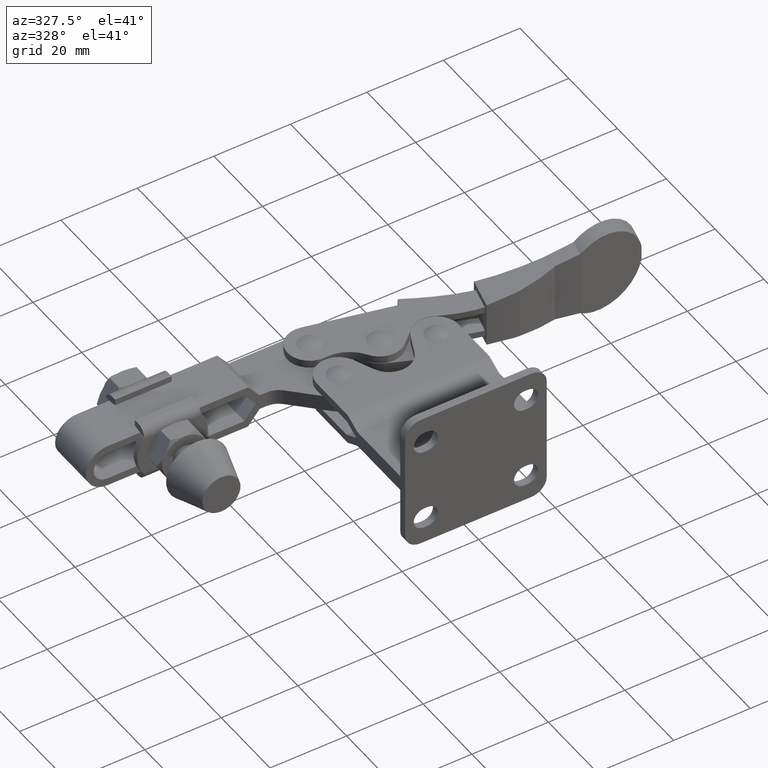
[diagram: clean part render]
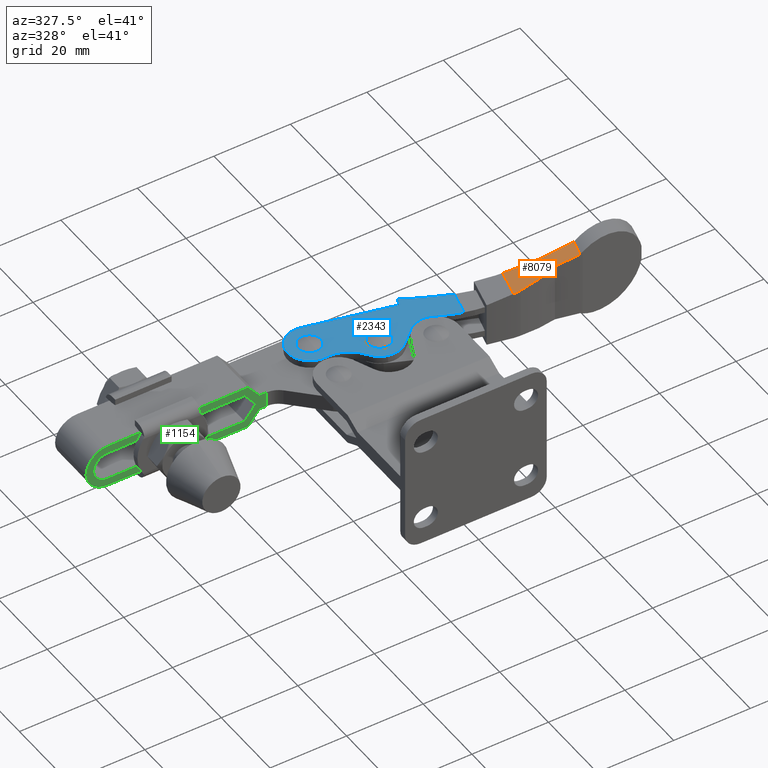
[diagram: same view with three faces highlighted in distinct colors, each labeled with its STEP entity id]
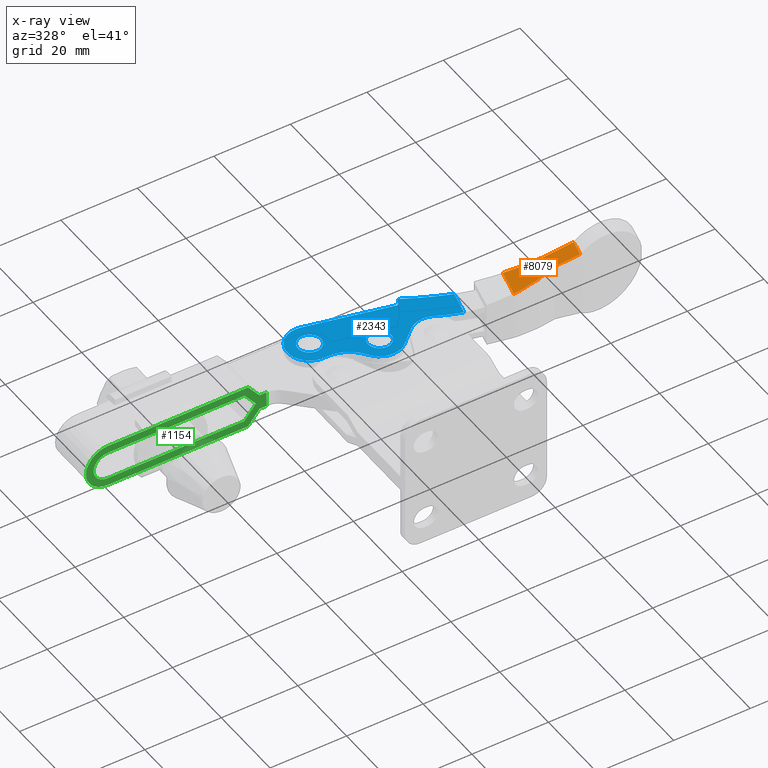
[diagram: x-ray of the same camera — body ghosted, the three highlighted faces saturated]
A machine part, auxiliary view with three faces highlighted in distinct colors.
The next image is the same camera in x-ray (body ghosted, the three faces saturated) — at least one of them is partly hidden behind the body in this view.
Their STEP definitions:

[orange] entity #8079 — the highlighted cylindrical surface (partial cylindrical patch) has radius 350 mm, axis along (0.2273, 0.9738, -0).
#182 = CARTESIAN_POINT ( 'NONE',  ( 29.71553373637161900, 9.047275869916001400, 6.605724985041725900 ) ) ;
#277 = CARTESIAN_POINT ( 'NONE',  ( 16.14530725229687400, 19.43555505541699800, 4.631027056434120900 ) ) ;
#385 = B_SPLINE_CURVE_WITH_KNOTS ( 'NONE', 3,
 ( #2225, #5186, #2043, #1844, #2708, #5007 ),
 .UNSPECIFIED., .F., .F.,
 ( 4, 2, 4 ),
 ( 3.576224061345498000E-018, 0.005052614420662414200, 0.01010522884132482500 ),
 .UNSPECIFIED. ) ;
#443 = CARTESIAN_POINT ( 'NONE',  ( 15.97146556828753300, 26.63097232074376200, 4.447964301841707000 ) ) ;
#506 = CARTESIAN_POINT ( 'NONE',  ( 18.80223342967128600, 26.02984194345509300, 4.733842546678547900 ) ) ;
#581 = CARTESIAN_POINT ( 'NONE',  ( 14.90673156297312800, 19.40787931447619400, 4.507748144591915600 ) ) ;
#837 = FACE_OUTER_BOUND ( 'NONE', #3276, .T. ) ;
#964 = EDGE_CURVE ( 'NONE', #9437, #5190, #4555, .T. ) ;
#971 = CARTESIAN_POINT ( 'NONE',  ( 15.52615591210867900, 19.41479442238132300, 4.568785837510017000 ) ) ;
#1143 = EDGE_CURVE ( 'NONE', #1661, #2745, #3357, .T. ) ;
#1182 = CARTESIAN_POINT ( 'NONE',  ( 14.28702906679042100, 19.41482591856081500, 4.447964301841707000 ) ) ;
#1265 = CARTESIAN_POINT ( 'NONE',  ( 33.09676607689792100, 24.91577958649055400, 6.558819776154054500 ) ) ;
#1320 = ORIENTED_EDGE ( 'NONE', *, *, #9620, .T. ) ;
#1661 = VERTEX_POINT ( 'NONE', #2335 ) ;
#1747 = CARTESIAN_POINT ( 'NONE',  ( 32.43116450689047500, 20.68107102747750000, 6.605724985041725900 ) ) ;
#1844 = CARTESIAN_POINT ( 'NONE',  ( 22.80861727215235700, 20.20002766094386000, 5.342591748807359800 ) ) ;
#2043 = CARTESIAN_POINT ( 'NONE',  ( 19.50425984917126600, 19.65757824698035300, 4.977687391297224400 ) ) ;
#2149 = CARTESIAN_POINT ( 'NONE',  ( 21.64483792207226300, 25.58866070633467200, 5.053658567342627500 ) ) ;
#2183 = B_SPLINE_CURVE_WITH_KNOTS ( 'NONE', 3,
 ( #1182, #581, #971, #277 ),
 .UNSPECIFIED., .F., .F.,
 ( 4, 4 ),
 ( 1.097820954441604300E-016, 0.001867388412720647800 ),
 .UNSPECIFIED. ) ;
#2225 = CARTESIAN_POINT ( 'NONE',  ( 16.14530725229687400, 19.43555505541699800, 4.631027056434120900 ) ) ;
#2309 = VECTOR ( 'NONE', #9133, 1000.000000000000000 ) ;
#2335 = CARTESIAN_POINT ( 'NONE',  ( 14.28702906679042100, 19.41482591856081500, 4.447964301841707000 ) ) ;
#2461 = VECTOR ( 'NONE', #7584, 1000.000000000000000 ) ;
#2509 = DIRECTION ( 'NONE',  ( 0.2273152359232463700, 0.9738212276989852700, -5.621189200537000000E-022 ) ) ;
#2661 = ORIENTED_EDGE ( 'NONE', *, *, #964, .T. ) ;
#2708 = CARTESIAN_POINT ( 'NONE',  ( 24.44281453312565200, 20.57708218126365600, 5.530614048624150000 ) ) ;
#2745 = VERTEX_POINT ( 'NONE', #4115 ) ;
#3190 = VERTEX_POINT ( 'NONE', #8063 ) ;
#3276 = EDGE_LOOP ( 'NONE', ( #2661, #7946, #1320, #8338, #4488, #7329, #8896 ) ) ;
#3357 = LINE ( 'NONE', #6488, #2309 ) ;
#3686 = VERTEX_POINT ( 'NONE', #1265 ) ;
#3923 = CARTESIAN_POINT ( 'NONE',  ( -20.72458187316135200, 20.82131247298844900, 352.7518889091366000 ) ) ;
#4018 = VERTEX_POINT ( 'NONE', #5158 ) ;
#4115 = CARTESIAN_POINT ( 'NONE',  ( 15.97146556828753300, 26.63097232074376200, 4.447964301841707000 ) ) ;
#4142 = CARTESIAN_POINT ( 'NONE',  ( 32.43116450689047500, 20.68107102747750000, 6.605724985041725900 ) ) ;
#4278 = DIRECTION ( 'NONE',  ( -0.9738212276989852700, 0.2273152359232464300, 0.0000000000000000000 ) ) ;
#4488 = ORIENTED_EDGE ( 'NONE', *, *, #7519, .T. ) ;
#4555 = LINE ( 'NONE', #182, #2461 ) ;
#4837 = CARTESIAN_POINT ( 'NONE',  ( 27.35324036018420900, 25.01780731453373000, 5.758242121814880000 ) ) ;
#5007 = CARTESIAN_POINT ( 'NONE',  ( 26.05880298282687600, 21.06250147665629800, 5.722492895900964000 ) ) ;
#5091 = B_SPLINE_CURVE_WITH_KNOTS ( 'NONE', 3,
 ( #8169, #6810, #4837, #2149, #506, #443 ),
 .UNSPECIFIED., .F., .F.,
 ( 4, 2, 4 ),
 ( 0.0000000000000000000, 0.008669969931598386600, 0.01733993986319677300 ),
 .UNSPECIFIED. ) ;
#5158 = CARTESIAN_POINT ( 'NONE',  ( 26.05880298282687600, 21.06250147665629800, 5.722492895900964000 ) ) ;
#5186 = CARTESIAN_POINT ( 'NONE',  ( 17.83410101094937500, 19.49218164284500100, 4.800795859677078800 ) ) ;
#5190 = VERTEX_POINT ( 'NONE', #5215 ) ;
#5215 = CARTESIAN_POINT ( 'NONE',  ( 33.42759395600311500, 24.94978687271866800, 6.605724985041725900 ) ) ;
#5733 = CYLINDRICAL_SURFACE ( 'NONE', #9804, 349.9999999999998300 ) ;
#6030 = CARTESIAN_POINT ( 'NONE',  ( 33.20704950388130100, 24.92711611616207900, 6.574407243089404500 ) ) ;
#6075 = EDGE_CURVE ( 'NONE', #5190, #3686, #6669, .T. ) ;
#6182 = B_SPLINE_CURVE_WITH_KNOTS ( 'NONE', 3,
 ( #7735, #7047, #8552, #1747 ),
 .UNSPECIFIED., .F., .F.,
 ( 4, 4 ),
 ( 0.0000000000000000000, 0.006444577527209586700 ),
 .UNSPECIFIED. ) ;
#6488 = CARTESIAN_POINT ( 'NONE',  ( 12.78924758210094100, 12.99831187223626800, 4.447964301841707000 ) ) ;
#6578 = EDGE_CURVE ( 'NONE', #4018, #9437, #6182, .T. ) ;
#6669 =( BOUNDED_CURVE ( )  B_SPLINE_CURVE ( 3, ( #8007, #8122, #6030, #8852 ),
 .UNSPECIFIED., .F., .F. ) 
 B_SPLINE_CURVE_WITH_KNOTS ( ( 4, 4 ),
 ( 1.422261976327436700, 1.423170307967368100 ),
 .UNSPECIFIED. ) 
 CURVE ( )  GEOMETRIC_REPRESENTATION_ITEM ( )  RATIONAL_B_SPLINE_CURVE ( ( 1.000000000000000000, 0.9999999312444704000, 0.9999999312444704000, 1.000000000000000000 ) ) 
 REPRESENTATION_ITEM ( '' )  );
#6810 = CARTESIAN_POINT ( 'NONE',  ( 30.21903856903797300, 24.88814573504698300, 6.143016113714499400 ) ) ;
#7047 = CARTESIAN_POINT ( 'NONE',  ( 28.17730242176467900, 20.80395871625338700, 6.000712829735866700 ) ) ;
#7329 = ORIENTED_EDGE ( 'NONE', *, *, #9496, .T. ) ;
#7519 = EDGE_CURVE ( 'NONE', #1661, #3190, #2183, .T. ) ;
#7584 = DIRECTION ( 'NONE',  ( 0.2273152359232463700, 0.9738212276989852700, -5.621189200537000000E-022 ) ) ;
#7735 = CARTESIAN_POINT ( 'NONE',  ( 26.05880298282687600, 21.06250147665629800, 5.722492895900964000 ) ) ;
#7946 = ORIENTED_EDGE ( 'NONE', *, *, #6075, .T. ) ;
#8007 = CARTESIAN_POINT ( 'NONE',  ( 33.42759395600311500, 24.94978687271866800, 6.605724985041725900 ) ) ;
#8063 = CARTESIAN_POINT ( 'NONE',  ( 16.14530725229687400, 19.43555505541699800, 4.631027056434120900 ) ) ;
#8079 = ADVANCED_FACE ( 'NONE', ( #837 ), #5733, .F. ) ;
#8122 = CARTESIAN_POINT ( 'NONE',  ( 33.31732547116505600, 24.93845187901751400, 6.590042313793631500 ) ) ;
#8169 = CARTESIAN_POINT ( 'NONE',  ( 33.09676607689792100, 24.91577958649055400, 6.558819776154054500 ) ) ;
#8338 = ORIENTED_EDGE ( 'NONE', *, *, #1143, .F. ) ;
#8552 = CARTESIAN_POINT ( 'NONE',  ( 30.30138576244248200, 20.67709121147731500, 6.295510865156307600 ) ) ;
#8852 = CARTESIAN_POINT ( 'NONE',  ( 33.09676607689792100, 24.91577958649055400, 6.558819776154054500 ) ) ;
#8896 = ORIENTED_EDGE ( 'NONE', *, *, #6578, .T. ) ;
#9133 = DIRECTION ( 'NONE',  ( 0.2273152359232463700, 0.9738212276989852700, -5.621189200537000000E-022 ) ) ;
#9437 = VERTEX_POINT ( 'NONE', #4142 ) ;
#9496 = EDGE_CURVE ( 'NONE', #3190, #4018, #385, .T. ) ;
#9620 = EDGE_CURVE ( 'NONE', #3686, #2745, #5091, .T. ) ;
#9804 = AXIS2_PLACEMENT_3D ( 'NONE', #3923, #2509, #4278 ) ;

[blue] entity #2343 — the highlighted planar face has unit normal (-0, 0, 1).
#180 = AXIS2_PLACEMENT_3D ( 'NONE', #3273, #6023, #6068 ) ;
#250 = ORIENTED_EDGE ( 'NONE', *, *, #9663, .T. ) ;
#321 = LINE ( 'NONE', #8306, #969 ) ;
#386 = VERTEX_POINT ( 'NONE', #6873 ) ;
#405 = CARTESIAN_POINT ( 'NONE',  ( 3.148089688104482900, 22.31686431136514800, 2.099999999999925000 ) ) ;
#488 = DIRECTION ( 'NONE',  ( -4.082110364348194400E-017, 9.529285930860709400E-018, 1.000000000000000000 ) ) ;
#624 = VERTEX_POINT ( 'NONE', #1834 ) ;
#851 = CIRCLE ( 'NONE', #5247, 79.99999999999998600 ) ;
#900 = DIRECTION ( 'NONE',  ( -4.084482097190259600E-017, 9.426162583637845600E-018, 1.000000000000000000 ) ) ;
#937 = VECTOR ( 'NONE', #2559, 999.9999999999998900 ) ;
#951 = CIRCLE ( 'NONE', #6824, 40.35285523613284700 ) ;
#969 = VECTOR ( 'NONE', #4271, 1000.000000000000000 ) ;
#1085 = CARTESIAN_POINT ( 'NONE',  ( 4.629808909308162700, 28.66456742610471800, 2.099999999999925000 ) ) ;
#1186 = CIRCLE ( 'NONE', #9735, 2.993325909419145800 ) ;
#1211 = CARTESIAN_POINT ( 'NONE',  ( -9.362409637480292100, 24.19322708995131400, 2.099999999999924100 ) ) ;
#1223 = LINE ( 'NONE', #1211, #1707 ) ;
#1390 = VERTEX_POINT ( 'NONE', #8978 ) ;
#1425 = EDGE_LOOP ( 'NONE', ( #9921, #3914 ) ) ;
#1428 = EDGE_CURVE ( 'NONE', #5477, #9100, #3983, .T. ) ;
#1510 = DIRECTION ( 'NONE',  ( -4.082110364348194400E-017, 9.529285930860709400E-018, 1.000000000000000000 ) ) ;
#1545 = DIRECTION ( 'NONE',  ( -4.082110364348194400E-017, 9.529285930860709400E-018, 1.000000000000000000 ) ) ;
#1707 = VECTOR ( 'NONE', #7767, 1000.000000000000000 ) ;
#1717 = VECTOR ( 'NONE', #6755, 1000.000000000000000 ) ;
#1834 = CARTESIAN_POINT ( 'NONE',  ( -9.608763321469787400, 23.97306966154277000, 2.099999999999924100 ) ) ;
#1845 = AXIS2_PLACEMENT_3D ( 'NONE', #3187, #4653, #4477 ) ;
#1914 = CARTESIAN_POINT ( 'NONE',  ( -22.38086238138301800, 21.69770944711292400, 2.099999999999925000 ) ) ;
#2136 = CIRCLE ( 'NONE', #3375, 5.749999999999998200 ) ;
#2276 = EDGE_CURVE ( 'NONE', #3159, #9753, #851, .T. ) ;
#2287 = EDGE_CURVE ( 'NONE', #9753, #3642, #5509, .T. ) ;
#2343 = ADVANCED_FACE ( 'NONE', ( #6138, #8514, #9927 ), #7009, .T. ) ;
#2551 = ORIENTED_EDGE ( 'NONE', *, *, #2287, .T. ) ;
#2559 = DIRECTION ( 'NONE',  ( -0.9738212276989853800, 0.2273152359232462600, -4.191860914567678200E-017 ) ) ;
#2580 = DIRECTION ( 'NONE',  ( -4.082110364348194400E-017, 9.529285930860709400E-018, 1.000000000000000000 ) ) ;
#2630 = AXIS2_PLACEMENT_3D ( 'NONE', #7942, #1545, #9788 ) ;
#2702 = CIRCLE ( 'NONE', #180, 5.749999999999992900 ) ;
#2773 = EDGE_CURVE ( 'NONE', #7210, #9166, #951, .T. ) ;
#3056 = EDGE_CURVE ( 'NONE', #6719, #5916, #4250, .T. ) ;
#3149 = EDGE_LOOP ( 'NONE', ( #5692, #3834, #2551, #6059, #6261, #5001, #5769, #8066, #5660, #6096, #250, #8357 ) ) ;
#3159 = VERTEX_POINT ( 'NONE', #1085 ) ;
#3175 = DIRECTION ( 'NONE',  ( -0.9738212276989850500, 0.2273152359232466800, -7.542275982507853400E-017 ) ) ;
#3187 = CARTESIAN_POINT ( 'NONE',  ( 3.238114469305601400, 10.09338246356555200, 2.099999999999925000 ) ) ;
#3205 = DIRECTION ( 'NONE',  ( -0.9738212276989866000, 0.2273152359232403500, -4.336808689942018400E-017 ) ) ;
#3207 = CARTESIAN_POINT ( 'NONE',  ( -29.94293739344106300, 37.34947205926926700, 2.099999999999921500 ) ) ;
#3273 = CARTESIAN_POINT ( 'NONE',  ( -5.777248084228935100, 19.68564724396002000, 2.099999999999925000 ) ) ;
#3375 = AXIS2_PLACEMENT_3D ( 'NONE', #9668, #7222, #9922 ) ;
#3406 = EDGE_CURVE ( 'NONE', #7687, #1390, #7557, .T. ) ;
#3642 = VERTEX_POINT ( 'NONE', #5271 ) ;
#3834 = ORIENTED_EDGE ( 'NONE', *, *, #2276, .T. ) ;
#3902 = ORIENTED_EDGE ( 'NONE', *, *, #3056, .F. ) ;
#3906 = AXIS2_PLACEMENT_3D ( 'NONE', #9380, #9485, #9469 ) ;
#3914 = ORIENTED_EDGE ( 'NONE', *, *, #3406, .F. ) ;
#3941 = VERTEX_POINT ( 'NONE', #3207 ) ;
#3983 = CIRCLE ( 'NONE', #6811, 5.749999999999998200 ) ;
#4021 = CARTESIAN_POINT ( 'NONE',  ( -17.45843402247838900, 24.66961103556628000, 2.099999999999917900 ) ) ;
#4123 = EDGE_CURVE ( 'NONE', #3642, #3941, #6449, .T. ) ;
#4209 = CIRCLE ( 'NONE', #3906, 8.999999999999930700 ) ;
#4250 = CIRCLE ( 'NONE', #8103, 2.993325909419145800 ) ;
#4271 = DIRECTION ( 'NONE',  ( 0.2273152359232463700, 0.9738212276989852700, -5.621189200537000000E-022 ) ) ;
#4305 = DIRECTION ( 'NONE',  ( 1.000000000000000000, 0.0000000000000000000, 0.0000000000000000000 ) ) ;
#4477 = DIRECTION ( 'NONE',  ( -0.9738212276989852700, 0.2273152359232463700, -4.191860914567677500E-017 ) ) ;
#4653 = DIRECTION ( 'NONE',  ( -4.082110364348193200E-017, 9.529285930860707800E-018, 1.000000000000000000 ) ) ;
#4883 = CARTESIAN_POINT ( 'NONE',  ( -17.45843402247838900, 24.66961103556628000, 2.099999999999917900 ) ) ;
#4982 = EDGE_CURVE ( 'NONE', #5916, #6719, #1186, .T. ) ;
#5001 = ORIENTED_EDGE ( 'NONE', *, *, #7124, .T. ) ;
#5247 = AXIS2_PLACEMENT_3D ( 'NONE', #7367, #5259, #3205 ) ;
#5259 = DIRECTION ( 'NONE',  ( 4.082110364348194400E-017, -9.529285930860709400E-018, -1.000000000000000000 ) ) ;
#5271 = CARTESIAN_POINT ( 'NONE',  ( -7.715475415116430600, 32.16100356026499400, 2.099999999999925000 ) ) ;
#5349 = ORIENTED_EDGE ( 'NONE', *, *, #4982, .F. ) ;
#5392 = CARTESIAN_POINT ( 'NONE',  ( -17.45843402247838900, 21.67628512614712800, 2.099999999999917900 ) ) ;
#5395 = DIRECTION ( 'NONE',  ( -4.082110364348194400E-017, 9.529285930860709400E-018, 1.000000000000000000 ) ) ;
#5477 = VERTEX_POINT ( 'NONE', #9841 ) ;
#5509 = LINE ( 'NONE', #7446, #1717 ) ;
#5660 = ORIENTED_EDGE ( 'NONE', *, *, #1428, .T. ) ;
#5692 = ORIENTED_EDGE ( 'NONE', *, *, #7288, .T. ) ;
#5719 = CARTESIAN_POINT ( 'NONE',  ( -31.24999999999971900, 28.75667409058095100, 2.099999999999923700 ) ) ;
#5769 = ORIENTED_EDGE ( 'NONE', *, *, #6146, .T. ) ;
#5916 = VERTEX_POINT ( 'NONE', #9500 ) ;
#5917 = VERTEX_POINT ( 'NONE', #1914 ) ;
#6009 = EDGE_CURVE ( 'NONE', #5917, #5477, #2136, .T. ) ;
#6023 = DIRECTION ( 'NONE',  ( 4.082110364348194400E-017, -9.529285930860709400E-018, -1.000000000000000000 ) ) ;
#6059 = ORIENTED_EDGE ( 'NONE', *, *, #4123, .T. ) ;
#6068 = DIRECTION ( 'NONE',  ( -0.9738212276989851600, 0.2273152359232464800, -7.542275982507865800E-017 ) ) ;
#6096 = ORIENTED_EDGE ( 'NONE', *, *, #7334, .T. ) ;
#6138 = FACE_BOUND ( 'NONE', #8591, .T. ) ;
#6146 = EDGE_CURVE ( 'NONE', #386, #5917, #4209, .T. ) ;
#6261 = ORIENTED_EDGE ( 'NONE', *, *, #6707, .T. ) ;
#6332 = CARTESIAN_POINT ( 'NONE',  ( -32.55706260655839700, 26.15052794073093200, 2.099999999999925000 ) ) ;
#6449 = LINE ( 'NONE', #8690, #937 ) ;
#6707 = EDGE_CURVE ( 'NONE', #3941, #6708, #9261, .T. ) ;
#6708 = VERTEX_POINT ( 'NONE', #6332 ) ;
#6719 = VERTEX_POINT ( 'NONE', #5719 ) ;
#6755 = DIRECTION ( 'NONE',  ( -0.4566171531680228200, -0.8896632932928785200, -1.016176023088449600E-017 ) ) ;
#6811 = AXIS2_PLACEMENT_3D ( 'NONE', #6847, #6871, #7926 ) ;
#6824 = AXIS2_PLACEMENT_3D ( 'NONE', #6875, #2580, #8087 ) ;
#6847 = CARTESIAN_POINT ( 'NONE',  ( -17.45843402247840000, 24.66961103556629100, 2.099999999999925000 ) ) ;
#6871 = DIRECTION ( 'NONE',  ( -4.082110364348194400E-017, 9.529285930860709400E-018, 1.000000000000000000 ) ) ;
#6873 = CARTESIAN_POINT ( 'NONE',  ( -30.79605518122651700, 26.01794678134372100, 2.099999999999925000 ) ) ;
#6875 = CARTESIAN_POINT ( 'NONE',  ( 14.75278981845948300, 60.96507074572419800, 2.099999999999925000 ) ) ;
#7009 = PLANE ( 'NONE',  #1845 ) ;
#7124 = EDGE_CURVE ( 'NONE', #6708, #386, #8123, .T. ) ;
#7210 = VERTEX_POINT ( 'NONE', #7273 ) ;
#7222 = DIRECTION ( 'NONE',  ( -4.082110364348194400E-017, 9.529285930860709400E-018, 1.000000000000000000 ) ) ;
#7270 = CARTESIAN_POINT ( 'NONE',  ( -13.62691878523754100, 20.38218861798354100, 2.099999999999925000 ) ) ;
#7273 = CARTESIAN_POINT ( 'NONE',  ( -3.216718647693298700, 24.83406340862996900, 2.099999999999925000 ) ) ;
#7288 = EDGE_CURVE ( 'NONE', #9166, #3159, #321, .T. ) ;
#7334 = EDGE_CURVE ( 'NONE', #9100, #624, #1223, .T. ) ;
#7367 = CARTESIAN_POINT ( 'NONE',  ( 32.34011100873916400, 103.7121467178998000, 2.099999999999925000 ) ) ;
#7421 = DIRECTION ( 'NONE',  ( -4.084482097190259600E-017, 9.426162583637845600E-018, 1.000000000000000000 ) ) ;
#7446 = CARTESIAN_POINT ( 'NONE',  ( -14.39631195513749900, 19.14420163570079200, 2.099999999999924100 ) ) ;
#7557 = CIRCLE ( 'NONE', #8708, 2.993325909419154200 ) ;
#7604 = AXIS2_PLACEMENT_3D ( 'NONE', #9068, #5395, #3175 ) ;
#7687 = VERTEX_POINT ( 'NONE', #5392 ) ;
#7767 = DIRECTION ( 'NONE',  ( 0.7456386813187392300, 0.6663504760418886800, 2.408794967433314400E-017 ) ) ;
#7843 = DIRECTION ( 'NONE',  ( 1.000000000000000000, 0.0000000000000000000, 0.0000000000000000000 ) ) ;
#7926 = DIRECTION ( 'NONE',  ( -0.9738212276989852700, 0.2273152359232462900, -7.542275982507859600E-017 ) ) ;
#7942 = CARTESIAN_POINT ( 'NONE',  ( -31.24999999999973000, 31.75000000000009600, 2.099999999999925000 ) ) ;
#8066 = ORIENTED_EDGE ( 'NONE', *, *, #6009, .T. ) ;
#8087 = DIRECTION ( 'NONE',  ( -0.9738212276989851600, 0.2273152359232464300, -4.298886574012480500E-017 ) ) ;
#8103 = AXIS2_PLACEMENT_3D ( 'NONE', #8294, #1510, #9239 ) ;
#8123 = CIRCLE ( 'NONE', #7604, 5.750000000000002700 ) ;
#8148 = EDGE_CURVE ( 'NONE', #1390, #7687, #9904, .T. ) ;
#8294 = CARTESIAN_POINT ( 'NONE',  ( -31.24999999999971900, 31.75000000000009600, 2.099999999999923300 ) ) ;
#8306 = CARTESIAN_POINT ( 'NONE',  ( 0.4468977170068513800, 10.74492514564583900, 2.099999999999925000 ) ) ;
#8357 = ORIENTED_EDGE ( 'NONE', *, *, #2773, .T. ) ;
#8483 = CARTESIAN_POINT ( 'NONE',  ( -6.801583942516571400, 33.94161055582892300, 2.099999999999921500 ) ) ;
#8514 = FACE_BOUND ( 'NONE', #1425, .T. ) ;
#8583 = AXIS2_PLACEMENT_3D ( 'NONE', #4021, #7421, #9781 ) ;
#8591 = EDGE_LOOP ( 'NONE', ( #5349, #3902 ) ) ;
#8690 = CARTESIAN_POINT ( 'NONE',  ( 7.557103951847284200, 28.59598578984627100, 2.099999999999925000 ) ) ;
#8708 = AXIS2_PLACEMENT_3D ( 'NONE', #4883, #900, #4305 ) ;
#8978 = CARTESIAN_POINT ( 'NONE',  ( -17.45843402247838900, 27.66293694498543200, 2.099999999999917900 ) ) ;
#9029 = CARTESIAN_POINT ( 'NONE',  ( -31.24999999999971900, 31.75000000000009600, 2.099999999999923300 ) ) ;
#9068 = CARTESIAN_POINT ( 'NONE',  ( -31.24999999999973000, 31.75000000000009600, 2.099999999999925000 ) ) ;
#9100 = VERTEX_POINT ( 'NONE', #7270 ) ;
#9166 = VERTEX_POINT ( 'NONE', #405 ) ;
#9239 = DIRECTION ( 'NONE',  ( 1.000000000000000000, 0.0000000000000000000, 0.0000000000000000000 ) ) ;
#9261 = CIRCLE ( 'NONE', #2630, 5.750000000000002700 ) ;
#9380 = CARTESIAN_POINT ( 'NONE',  ( -30.08553285619019100, 17.04603739562075400, 2.099999999999925000 ) ) ;
#9469 = DIRECTION ( 'NONE',  ( -0.9738212276989853800, 0.2273152359232463200, -4.818676322157834600E-017 ) ) ;
#9485 = DIRECTION ( 'NONE',  ( 4.082110364348194400E-017, -9.529285930860709400E-018, -1.000000000000000000 ) ) ;
#9500 = CARTESIAN_POINT ( 'NONE',  ( -31.24999999999971900, 34.74332590941924100, 2.099999999999923700 ) ) ;
#9663 = EDGE_CURVE ( 'NONE', #624, #7210, #2702, .T. ) ;
#9668 = CARTESIAN_POINT ( 'NONE',  ( -17.45843402247840000, 24.66961103556629100, 2.099999999999925000 ) ) ;
#9735 = AXIS2_PLACEMENT_3D ( 'NONE', #9029, #488, #7843 ) ;
#9753 = VERTEX_POINT ( 'NONE', #8483 ) ;
#9781 = DIRECTION ( 'NONE',  ( 1.000000000000000000, 0.0000000000000000000, 0.0000000000000000000 ) ) ;
#9788 = DIRECTION ( 'NONE',  ( -0.9738212276989850500, 0.2273152359232466800, -7.542275982507853400E-017 ) ) ;
#9841 = CARTESIAN_POINT ( 'NONE',  ( -18.76549662903706700, 19.07013897629712700, 2.099999999999925000 ) ) ;
#9904 = CIRCLE ( 'NONE', #8583, 2.993325909419154200 ) ;
#9921 = ORIENTED_EDGE ( 'NONE', *, *, #8148, .F. ) ;
#9922 = DIRECTION ( 'NONE',  ( -0.9738212276989852700, 0.2273152359232462900, -7.542275982507859600E-017 ) ) ;
#9927 = FACE_OUTER_BOUND ( 'NONE', #3149, .T. ) ;

[green] entity #1154 — the highlighted planar face has unit normal (0, -1, -0).
#83 = CARTESIAN_POINT ( 'NONE',  ( -51.54999999999969200, 25.08000000000017900, -7.699999999999424600 ) ) ;
#112 = ORIENTED_EDGE ( 'NONE', *, *, #8980, .F. ) ;
#189 = ORIENTED_EDGE ( 'NONE', *, *, #8658, .T. ) ;
#433 = VERTEX_POINT ( 'NONE', #8043 ) ;
#502 = VERTEX_POINT ( 'NONE', #4453 ) ;
#522 = VERTEX_POINT ( 'NONE', #926 ) ;
#588 = AXIS2_PLACEMENT_3D ( 'NONE', #2777, #4873, #4736 ) ;
#591 = DIRECTION ( 'NONE',  ( 1.000000000000000000, 6.224333782242064800E-019, -2.356930568284092300E-017 ) ) ;
#612 = VERTEX_POINT ( 'NONE', #5576 ) ;
#677 = LINE ( 'NONE', #5332, #8184 ) ;
#740 = LINE ( 'NONE', #6703, #3767 ) ;
#771 = ORIENTED_EDGE ( 'NONE', *, *, #1609, .F. ) ;
#794 = CARTESIAN_POINT ( 'NONE',  ( -93.91542650810583800, 25.08000000000017900, -2.000049999999548200 ) ) ;
#926 = CARTESIAN_POINT ( 'NONE',  ( -88.19999999999988900, 25.08000000000017900, -5.699999999999473500 ) ) ;
#1030 = CIRCLE ( 'NONE', #3433, 5.699999999999913100 ) ;
#1068 = VERTEX_POINT ( 'NONE', #2803 ) ;
#1095 = ORIENTED_EDGE ( 'NONE', *, *, #5230, .F. ) ;
#1116 = VERTEX_POINT ( 'NONE', #7543 ) ;
#1140 = CARTESIAN_POINT ( 'NONE',  ( -48.54999999999956400, 25.08000000000017900, 6.453171330633722400E-013 ) ) ;
#1154 = ADVANCED_FACE ( 'NONE', ( #7123 ), #9103, .T. ) ;
#1278 = CARTESIAN_POINT ( 'NONE',  ( -88.19999999999983200, 25.08000000000017900, 1.700000000000458900 ) ) ;
#1323 = CIRCLE ( 'NONE', #2660, 5.699999999999913100 ) ;
#1356 = CARTESIAN_POINT ( 'NONE',  ( -52.50319034893249900, 25.08000000000017900, -5.699999999999502800 ) ) ;
#1421 = ORIENTED_EDGE ( 'NONE', *, *, #8615, .F. ) ;
#1446 = DIRECTION ( 'NONE',  ( -1.000000000000000000, -6.224333782242064800E-019, 1.554344465351351100E-015 ) ) ;
#1466 = LINE ( 'NONE', #1278, #5137 ) ;
#1609 = EDGE_CURVE ( 'NONE', #522, #5232, #3871, .T. ) ;
#1663 = DIRECTION ( 'NONE',  ( -0.6298019584212584100, -9.373560944137072300E-017, 0.7767557487194719500 ) ) ;
#1721 = ORIENTED_EDGE ( 'NONE', *, *, #5834, .F. ) ;
#1756 = CIRCLE ( 'NONE', #2584, 3.699999999999967300 ) ;
#1790 = ORIENTED_EDGE ( 'NONE', *, *, #8430, .F. ) ;
#1886 = DIRECTION ( 'NONE',  ( 1.000000000000000000, 0.0000000000000000000, 0.0000000000000000000 ) ) ;
#2018 = VERTEX_POINT ( 'NONE', #1140 ) ;
#2197 = CARTESIAN_POINT ( 'NONE',  ( -46.71208511739180800, 25.08000000000017900, 6.340414304695229900E-013 ) ) ;
#2477 = CARTESIAN_POINT ( 'NONE',  ( -46.71208511739180800, 25.08000000000025400, -2.000049999999549100 ) ) ;
#2546 = EDGE_CURVE ( 'NONE', #4896, #612, #7442, .T. ) ;
#2584 = AXIS2_PLACEMENT_3D ( 'NONE', #9204, #9238, #6462 ) ;
#2660 = AXIS2_PLACEMENT_3D ( 'NONE', #8635, #9665, #8235 ) ;
#2777 = CARTESIAN_POINT ( 'NONE',  ( -88.19999999999988900, 25.08000000000017900, -1.999999999999506800 ) ) ;
#2803 = CARTESIAN_POINT ( 'NONE',  ( -88.19999999999988900, 25.08000000000009400, 1.700000000000458900 ) ) ;
#2962 = CARTESIAN_POINT ( 'NONE',  ( -93.91542650810583800, 25.08000000000017900, -7.699999999999421100 ) ) ;
#3096 = ORIENTED_EDGE ( 'NONE', *, *, #4892, .T. ) ;
#3177 = CARTESIAN_POINT ( 'NONE',  ( -52.50319034893247800, 25.08000000000017900, -5.699999999999474400 ) ) ;
#3211 = LINE ( 'NONE', #2962, #3464 ) ;
#3244 = LINE ( 'NONE', #6769, #3591 ) ;
#3258 = CARTESIAN_POINT ( 'NONE',  ( -52.50319034893227900, 25.08000000000017900, 1.700000000000403400 ) ) ;
#3394 = LINE ( 'NONE', #794, #3405 ) ;
#3405 = VECTOR ( 'NONE', #591, 1000.000000000000000 ) ;
#3433 = AXIS2_PLACEMENT_3D ( 'NONE', #4116, #6991, #1886 ) ;
#3464 = VECTOR ( 'NONE', #5747, 1000.000000000000000 ) ;
#3468 = VECTOR ( 'NONE', #7941, 999.9999999999998900 ) ;
#3591 = VECTOR ( 'NONE', #1663, 1000.000000000000100 ) ;
#3621 = DIRECTION ( 'NONE',  ( -0.6298019584212384300, -9.373560944137269600E-017, 0.7767557487194880500 ) ) ;
#3747 = VECTOR ( 'NONE', #8077, 1000.000000000000000 ) ;
#3767 = VECTOR ( 'NONE', #3621, 999.9999999999998900 ) ;
#3871 = LINE ( 'NONE', #6820, #7572 ) ;
#4081 = ORIENTED_EDGE ( 'NONE', *, *, #9467, .F. ) ;
#4116 = CARTESIAN_POINT ( 'NONE',  ( -88.19999999999988900, 25.08000000000017900, -1.999999999999506800 ) ) ;
#4244 = VERTEX_POINT ( 'NONE', #6846 ) ;
#4351 = DIRECTION ( 'NONE',  ( 2.356930568284093500E-017, -1.201711089163627100E-016, 1.000000000000000000 ) ) ;
#4453 = CARTESIAN_POINT ( 'NONE',  ( -46.71208511739180800, 25.08000000000017900, -3.999999999999604800 ) ) ;
#4466 = EDGE_CURVE ( 'NONE', #4244, #9628, #677, .T. ) ;
#4666 = EDGE_CURVE ( 'NONE', #433, #7413, #1030, .T. ) ;
#4736 = DIRECTION ( 'NONE',  ( 1.000000000000000000, 0.0000000000000000000, 0.0000000000000000000 ) ) ;
#4862 = VERTEX_POINT ( 'NONE', #4989 ) ;
#4873 = DIRECTION ( 'NONE',  ( 6.224333782242064800E-019, -1.000000000000000000, -1.201711089163627100E-016 ) ) ;
#4892 = EDGE_CURVE ( 'NONE', #502, #5588, #6290, .T. ) ;
#4896 = VERTEX_POINT ( 'NONE', #83 ) ;
#4989 = CARTESIAN_POINT ( 'NONE',  ( -91.89999999999986400, 25.08000000000017900, -1.999999999999506600 ) ) ;
#4996 = VECTOR ( 'NONE', #6972, 1000.000000000000000 ) ;
#5037 = DIRECTION ( 'NONE',  ( -1.000000000000000000, -6.224333782257842000E-019, 1.329797503489646400E-014 ) ) ;
#5137 = VECTOR ( 'NONE', #1446, 1000.000000000000000 ) ;
#5153 = EDGE_CURVE ( 'NONE', #7413, #4896, #3211, .T. ) ;
#5230 = EDGE_CURVE ( 'NONE', #1068, #4862, #1756, .T. ) ;
#5232 = VERTEX_POINT ( 'NONE', #1356 ) ;
#5252 = LINE ( 'NONE', #8152, #4996 ) ;
#5270 = DIRECTION ( 'NONE',  ( 0.6298019584212666300, -9.295158992018597100E-017, 0.7767557487194652900 ) ) ;
#5302 = ORIENTED_EDGE ( 'NONE', *, *, #9559, .T. ) ;
#5332 = CARTESIAN_POINT ( 'NONE',  ( -46.71208511739180800, 25.08000000000017900, -7.699999999999421100 ) ) ;
#5371 = VERTEX_POINT ( 'NONE', #9589 ) ;
#5576 = CARTESIAN_POINT ( 'NONE',  ( -48.54999999999956400, 25.08000000000017900, -3.999999999999607000 ) ) ;
#5588 = VERTEX_POINT ( 'NONE', #2477 ) ;
#5712 = EDGE_LOOP ( 'NONE', ( #8292, #8492, #7551, #189, #1421, #5302, #8319, #8351, #9351, #8555, #3096, #7306, #112, #771, #4081, #1095, #1721, #1790 ) ) ;
#5747 = DIRECTION ( 'NONE',  ( 1.000000000000000000, 6.224333782242064800E-019, -2.356930568284092300E-017 ) ) ;
#5834 = EDGE_CURVE ( 'NONE', #8532, #1068, #1466, .T. ) ;
#5840 = DIRECTION ( 'NONE',  ( 2.356930568284093500E-017, -1.201711089163627100E-016, 1.000000000000000000 ) ) ;
#5874 = EDGE_CURVE ( 'NONE', #9628, #2018, #7854, .T. ) ;
#5930 = LINE ( 'NONE', #3177, #8892 ) ;
#5947 = EDGE_CURVE ( 'NONE', #4244, #6493, #6283, .T. ) ;
#6024 = AXIS2_PLACEMENT_3D ( 'NONE', #8626, #9511, #9545 ) ;
#6283 = LINE ( 'NONE', #9712, #8604 ) ;
#6290 = LINE ( 'NONE', #6845, #7409 ) ;
#6462 = DIRECTION ( 'NONE',  ( 1.000000000000000000, 0.0000000000000000000, 0.0000000000000000000 ) ) ;
#6493 = VERTEX_POINT ( 'NONE', #6549 ) ;
#6549 = CARTESIAN_POINT ( 'NONE',  ( -49.50323088947271100, 25.08000000000017900, -1.999949999999548900 ) ) ;
#6703 = CARTESIAN_POINT ( 'NONE',  ( -52.50319034893225700, 25.08000000000017900, 1.700000000000375200 ) ) ;
#6769 = CARTESIAN_POINT ( 'NONE',  ( -51.54999999999965600, 25.08000000000017900, 3.700000000000377200 ) ) ;
#6776 = DIRECTION ( 'NONE',  ( -1.000000000000000000, -6.224333782242064800E-019, 2.356930568284092300E-017 ) ) ;
#6820 = CARTESIAN_POINT ( 'NONE',  ( -88.19999999999983200, 25.08000000000017900, -5.699999999999473500 ) ) ;
#6845 = CARTESIAN_POINT ( 'NONE',  ( -46.71208511739180800, 25.08000000000017900, -7.699999999999421100 ) ) ;
#6846 = CARTESIAN_POINT ( 'NONE',  ( -46.71208511739180800, 25.08000000000025400, -1.999949999999549800 ) ) ;
#6912 = VERTEX_POINT ( 'NONE', #7804 ) ;
#6972 = DIRECTION ( 'NONE',  ( 1.000000000000000000, 6.224333782242064800E-019, 2.389959008719706000E-015 ) ) ;
#6991 = DIRECTION ( 'NONE',  ( 6.224333782242064800E-019, -1.000000000000000000, -1.201711089163627100E-016 ) ) ;
#7123 = FACE_OUTER_BOUND ( 'NONE', #5712, .T. ) ;
#7306 = ORIENTED_EDGE ( 'NONE', *, *, #8938, .F. ) ;
#7409 = VECTOR ( 'NONE', #4351, 1000.000000000000000 ) ;
#7413 = VERTEX_POINT ( 'NONE', #9964 ) ;
#7442 = LINE ( 'NONE', #9039, #3468 ) ;
#7543 = CARTESIAN_POINT ( 'NONE',  ( -51.54999999999967700, 25.08000000000017900, 3.700000000000405600 ) ) ;
#7551 = ORIENTED_EDGE ( 'NONE', *, *, #5874, .T. ) ;
#7572 = VECTOR ( 'NONE', #8947, 1000.000000000000000 ) ;
#7804 = CARTESIAN_POINT ( 'NONE',  ( -49.50323088947269700, 25.08000000000017900, -2.000049999999549100 ) ) ;
#7854 = LINE ( 'NONE', #7915, #9710 ) ;
#7915 = CARTESIAN_POINT ( 'NONE',  ( -25.54999999999914800, 25.08000000000017900, 3.404394821604483900E-013 ) ) ;
#7941 = DIRECTION ( 'NONE',  ( 0.6298019584212527500, -9.295158992018715500E-017, 0.7767557487194766100 ) ) ;
#8043 = CARTESIAN_POINT ( 'NONE',  ( -93.89999999999980700, 25.08000000000017900, -1.999999999999506600 ) ) ;
#8077 = DIRECTION ( 'NONE',  ( 1.000000000000000000, 6.224333782242064800E-019, -2.356930568284092300E-017 ) ) ;
#8152 = CARTESIAN_POINT ( 'NONE',  ( -48.54999999999950700, 25.08000000000017900, -3.999999999999607000 ) ) ;
#8184 = VECTOR ( 'NONE', #5840, 1000.000000000000000 ) ;
#8235 = DIRECTION ( 'NONE',  ( 1.000000000000000000, 0.0000000000000000000, 0.0000000000000000000 ) ) ;
#8292 = ORIENTED_EDGE ( 'NONE', *, *, #5947, .F. ) ;
#8319 = ORIENTED_EDGE ( 'NONE', *, *, #4666, .T. ) ;
#8351 = ORIENTED_EDGE ( 'NONE', *, *, #5153, .T. ) ;
#8430 = EDGE_CURVE ( 'NONE', #6493, #8532, #740, .T. ) ;
#8492 = ORIENTED_EDGE ( 'NONE', *, *, #4466, .T. ) ;
#8532 = VERTEX_POINT ( 'NONE', #3258 ) ;
#8555 = ORIENTED_EDGE ( 'NONE', *, *, #8887, .T. ) ;
#8604 = VECTOR ( 'NONE', #6776, 1000.000000000000000 ) ;
#8615 = EDGE_CURVE ( 'NONE', #5371, #1116, #9632, .T. ) ;
#8626 = CARTESIAN_POINT ( 'NONE',  ( -93.91542650810583800, 25.08000000000017900, -7.699999999999421100 ) ) ;
#8635 = CARTESIAN_POINT ( 'NONE',  ( -88.19999999999988900, 25.08000000000017900, -1.999999999999506800 ) ) ;
#8656 = CARTESIAN_POINT ( 'NONE',  ( -93.91542650810583800, 25.08000000000017900, 3.700000000000406500 ) ) ;
#8658 = EDGE_CURVE ( 'NONE', #2018, #1116, #3244, .T. ) ;
#8887 = EDGE_CURVE ( 'NONE', #612, #502, #5252, .T. ) ;
#8892 = VECTOR ( 'NONE', #5270, 999.9999999999998900 ) ;
#8938 = EDGE_CURVE ( 'NONE', #6912, #5588, #3394, .T. ) ;
#8947 = DIRECTION ( 'NONE',  ( 1.000000000000000000, 6.224333782242064800E-019, -8.254039131282560700E-016 ) ) ;
#8980 = EDGE_CURVE ( 'NONE', #5232, #6912, #5930, .T. ) ;
#9039 = CARTESIAN_POINT ( 'NONE',  ( -51.54999999999965600, 25.08000000000017900, -7.699999999999392700 ) ) ;
#9103 = PLANE ( 'NONE',  #6024 ) ;
#9204 = CARTESIAN_POINT ( 'NONE',  ( -88.19999999999988900, 25.08000000000017900, -1.999999999999506800 ) ) ;
#9238 = DIRECTION ( 'NONE',  ( 6.224333782242064800E-019, -1.000000000000000000, -1.201711089163627100E-016 ) ) ;
#9351 = ORIENTED_EDGE ( 'NONE', *, *, #2546, .T. ) ;
#9467 = EDGE_CURVE ( 'NONE', #4862, #522, #9837, .T. ) ;
#9511 = DIRECTION ( 'NONE',  ( 6.224333782242036900E-019, -1.000000000000000000, -1.201711089163627100E-016 ) ) ;
#9545 = DIRECTION ( 'NONE',  ( 1.000000000000000000, 6.224333782242064800E-019, -2.356930568284092600E-017 ) ) ;
#9559 = EDGE_CURVE ( 'NONE', #5371, #433, #1323, .T. ) ;
#9589 = CARTESIAN_POINT ( 'NONE',  ( -88.19999999999988900, 25.08000000000017900, 3.700000000000406500 ) ) ;
#9628 = VERTEX_POINT ( 'NONE', #2197 ) ;
#9632 = LINE ( 'NONE', #8656, #3747 ) ;
#9665 = DIRECTION ( 'NONE',  ( 6.224333782242064800E-019, -1.000000000000000000, -1.201711089163627100E-016 ) ) ;
#9710 = VECTOR ( 'NONE', #5037, 1000.000000000000000 ) ;
#9712 = CARTESIAN_POINT ( 'NONE',  ( -93.91542650810583800, 25.08000000000017900, -1.999949999999548900 ) ) ;
#9837 = CIRCLE ( 'NONE', #588, 3.699999999999967300 ) ;
#9964 = CARTESIAN_POINT ( 'NONE',  ( -88.19999999999988900, 25.08000000000017900, -7.699999999999421100 ) ) ;